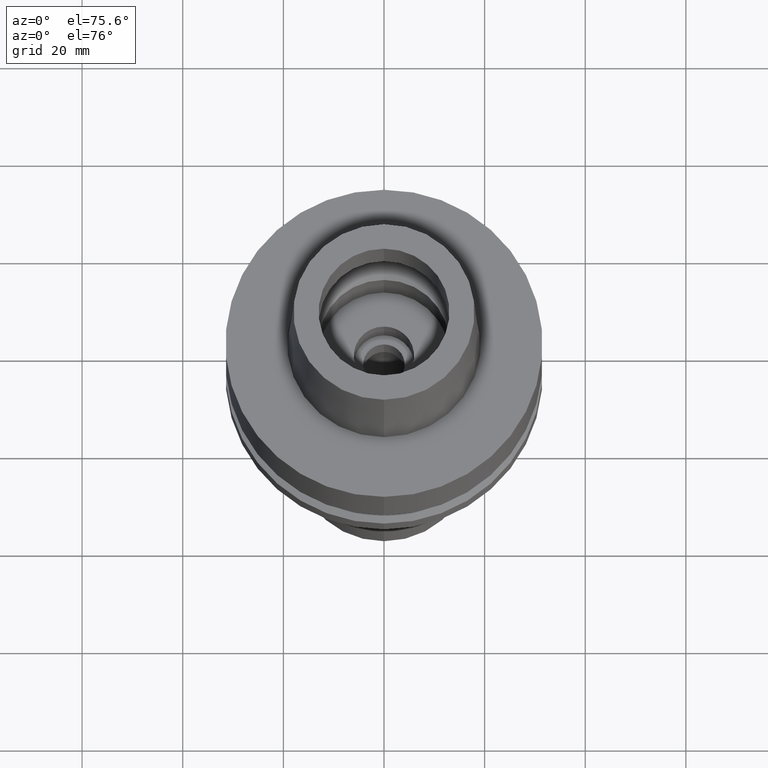
[diagram: clean part render]
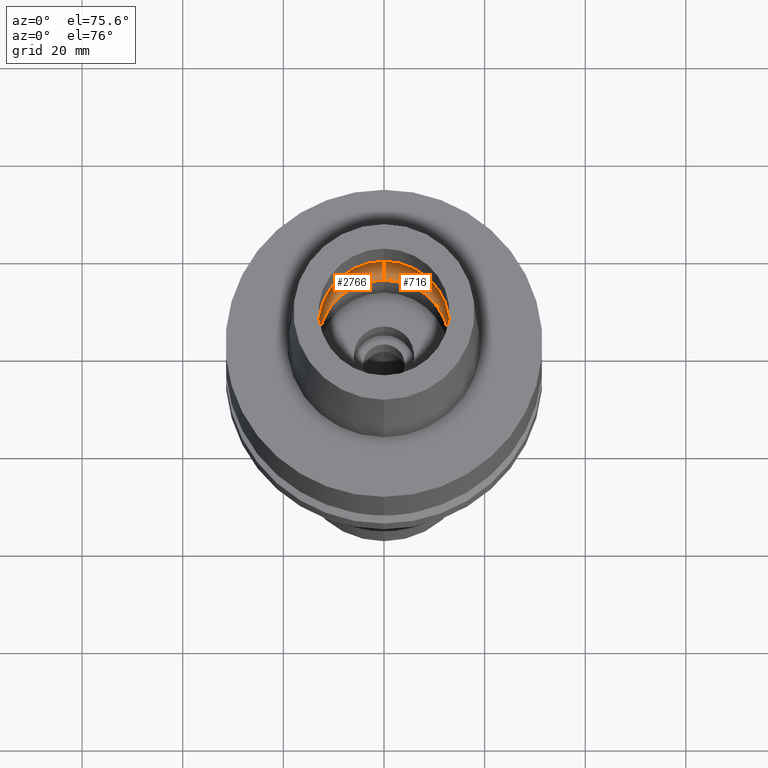
[diagram: same view with one multi-face feature highlighted, each face labeled with its STEP entity id]
A machine part, auxiliary view. The highlighted faces form ONE feature: a constant-radius fillet chain: 2 tangent blend faces with common blend radius 6 mm. The faces share edges in the B-rep.
Their STEP definitions:
[1] entity #716 (Torus):
#23 = CARTESIAN_POINT ( 'NONE',  ( 0.0000000000000000000, 0.0000000000000000000, 0.04984757729336999899 ) ) ;
#108 = ORIENTED_EDGE ( 'NONE', *, *, #1650, .F. ) ;
#173 = FACE_OUTER_BOUND ( 'NONE', #181, .T. ) ;
#181 = EDGE_LOOP ( 'NONE', ( #594, #468, #108, #2817 ) ) ;
#386 = VERTEX_POINT ( 'NONE', #1806 ) ;
#426 = AXIS2_PLACEMENT_3D ( 'NONE', #2552, #605, #2775 ) ;
#449 = DIRECTION ( 'NONE',  ( 0.0000000000000000000, 0.0000000000000000000, 1.000000000000000000 ) ) ;
#468 = ORIENTED_EDGE ( 'NONE', *, *, #2570, .T. ) ;
#479 = CIRCLE ( 'NONE', #2697, 13.00000000000000000 ) ;
#594 = ORIENTED_EDGE ( 'NONE', *, *, #2865, .F. ) ;
#605 = DIRECTION ( 'NONE',  ( 0.0000000000000000000, 0.0000000000000000000, -1.000000000000000000 ) ) ;
#641 = VERTEX_POINT ( 'NONE', #1928 ) ;
#716 = ADVANCED_FACE ( 'NONE', ( #173 ), #1967, .F. ) ;
#981 = CARTESIAN_POINT ( 'NONE',  ( 0.0000000000000000000, -16.00000000000000000, 5.245999999999999552 ) ) ;
#1023 = CIRCLE ( 'NONE', #426, 16.00000000000000000 ) ;
#1034 = CIRCLE ( 'NONE', #2043, 6.000000000000000000 ) ;
#1113 = DIRECTION ( 'NONE',  ( 0.0000000000000000000, 0.0000000000000000000, 1.000000000000000000 ) ) ;
#1218 = CIRCLE ( 'NONE', #2140, 6.000000000000000000 ) ;
#1220 = DIRECTION ( 'NONE',  ( 1.000000000000000000, 0.0000000000000000000, 0.0000000000000000000 ) ) ;
#1301 = DIRECTION ( 'NONE',  ( 0.0000000000000000000, 1.000000000000000000, 0.0000000000000000000 ) ) ;
#1407 = VERTEX_POINT ( 'NONE', #2312 ) ;
#1623 = CARTESIAN_POINT ( 'NONE',  ( 0.0000000000000000000, -10.00000000000000000, 5.245999999999999552 ) ) ;
#1642 = CARTESIAN_POINT ( 'NONE',  ( 0.0000000000000000000, 10.00000000000000000, 5.245999999999999552 ) ) ;
#1650 = EDGE_CURVE ( 'NONE', #386, #2022, #1023, .T. ) ;
#1742 = AXIS2_PLACEMENT_3D ( 'NONE', #2636, #1113, #1301 ) ;
#1806 = CARTESIAN_POINT ( 'NONE',  ( 0.0000000000000000000, 16.00000000000000000, 5.245999999999999552 ) ) ;
#1852 = DIRECTION ( 'NONE',  ( -1.000000000000000000, 0.0000000000000000000, 0.0000000000000000000 ) ) ;
#1928 = CARTESIAN_POINT ( 'NONE',  ( 0.0000000000000000000, -13.00000000000000000, 0.04984757729336999899 ) ) ;
#1967 = TOROIDAL_SURFACE ( 'NONE', #1742, 10.00000000000000000, 6.000000000000000000 ) ;
#2022 = VERTEX_POINT ( 'NONE', #981 ) ;
#2031 = DIRECTION ( 'NONE',  ( 0.0000000000000000000, -0.5000000000000169864, -0.8660254037844289376 ) ) ;
#2043 = AXIS2_PLACEMENT_3D ( 'NONE', #1623, #1852, #2031 ) ;
#2140 = AXIS2_PLACEMENT_3D ( 'NONE', #1642, #1220, #2294 ) ;
#2186 = DIRECTION ( 'NONE',  ( 0.0000000000000000000, -1.000000000000000000, 0.0000000000000000000 ) ) ;
#2294 = DIRECTION ( 'NONE',  ( 0.0000000000000000000, 0.5000000000000169864, -0.8660254037844289376 ) ) ;
#2312 = CARTESIAN_POINT ( 'NONE',  ( 0.0000000000000000000, 13.00000000000000000, 0.04984757729336999899 ) ) ;
#2552 = CARTESIAN_POINT ( 'NONE',  ( 0.0000000000000000000, 0.0000000000000000000, 5.245999999999999552 ) ) ;
#2553 = EDGE_CURVE ( 'NONE', #1407, #386, #1218, .T. ) ;
#2570 = EDGE_CURVE ( 'NONE', #641, #2022, #1034, .T. ) ;
#2636 = CARTESIAN_POINT ( 'NONE',  ( 0.0000000000000000000, 0.0000000000000000000, 5.245999999999999552 ) ) ;
#2697 = AXIS2_PLACEMENT_3D ( 'NONE', #23, #449, #2186 ) ;
#2775 = DIRECTION ( 'NONE',  ( 0.0000000000000000000, 1.000000000000000000, 0.0000000000000000000 ) ) ;
#2817 = ORIENTED_EDGE ( 'NONE', *, *, #2553, .F. ) ;
#2865 = EDGE_CURVE ( 'NONE', #641, #1407, #479, .T. ) ;
[2] entity #2766 (Torus):
#34 = EDGE_CURVE ( 'NONE', #1407, #641, #1918, .T. ) ;
#61 = EDGE_LOOP ( 'NONE', ( #2136, #1698, #2356, #2824 ) ) ;
#121 = DIRECTION ( 'NONE',  ( 0.0000000000000000000, 0.0000000000000000000, 1.000000000000000000 ) ) ;
#176 = DIRECTION ( 'NONE',  ( 0.0000000000000000000, 1.000000000000000000, 0.0000000000000000000 ) ) ;
#386 = VERTEX_POINT ( 'NONE', #1806 ) ;
#621 = CARTESIAN_POINT ( 'NONE',  ( 0.0000000000000000000, 0.0000000000000000000, 5.245999999999999552 ) ) ;
#641 = VERTEX_POINT ( 'NONE', #1928 ) ;
#981 = CARTESIAN_POINT ( 'NONE',  ( 0.0000000000000000000, -16.00000000000000000, 5.245999999999999552 ) ) ;
#1034 = CIRCLE ( 'NONE', #2043, 6.000000000000000000 ) ;
#1218 = CIRCLE ( 'NONE', #2140, 6.000000000000000000 ) ;
#1220 = DIRECTION ( 'NONE',  ( 1.000000000000000000, 0.0000000000000000000, 0.0000000000000000000 ) ) ;
#1407 = VERTEX_POINT ( 'NONE', #2312 ) ;
#1507 = TOROIDAL_SURFACE ( 'NONE', #1729, 10.00000000000000000, 6.000000000000000000 ) ;
#1623 = CARTESIAN_POINT ( 'NONE',  ( 0.0000000000000000000, -10.00000000000000000, 5.245999999999999552 ) ) ;
#1642 = CARTESIAN_POINT ( 'NONE',  ( 0.0000000000000000000, 10.00000000000000000, 5.245999999999999552 ) ) ;
#1698 = ORIENTED_EDGE ( 'NONE', *, *, #2570, .F. ) ;
#1729 = AXIS2_PLACEMENT_3D ( 'NONE', #621, #2100, #176 ) ;
#1780 = CIRCLE ( 'NONE', #2840, 16.00000000000000000 ) ;
#1806 = CARTESIAN_POINT ( 'NONE',  ( 0.0000000000000000000, 16.00000000000000000, 5.245999999999999552 ) ) ;
#1852 = DIRECTION ( 'NONE',  ( -1.000000000000000000, 0.0000000000000000000, 0.0000000000000000000 ) ) ;
#1918 = CIRCLE ( 'NONE', #2004, 13.00000000000000000 ) ;
#1928 = CARTESIAN_POINT ( 'NONE',  ( 0.0000000000000000000, -13.00000000000000000, 0.04984757729336999899 ) ) ;
#2004 = AXIS2_PLACEMENT_3D ( 'NONE', #2325, #121, #2395 ) ;
#2022 = VERTEX_POINT ( 'NONE', #981 ) ;
#2031 = DIRECTION ( 'NONE',  ( 0.0000000000000000000, -0.5000000000000169864, -0.8660254037844289376 ) ) ;
#2043 = AXIS2_PLACEMENT_3D ( 'NONE', #1623, #1852, #2031 ) ;
#2100 = DIRECTION ( 'NONE',  ( 0.0000000000000000000, 0.0000000000000000000, 1.000000000000000000 ) ) ;
#2136 = ORIENTED_EDGE ( 'NONE', *, *, #2254, .F. ) ;
#2140 = AXIS2_PLACEMENT_3D ( 'NONE', #1642, #1220, #2294 ) ;
#2254 = EDGE_CURVE ( 'NONE', #2022, #386, #1780, .T. ) ;
#2294 = DIRECTION ( 'NONE',  ( 0.0000000000000000000, 0.5000000000000169864, -0.8660254037844289376 ) ) ;
#2312 = CARTESIAN_POINT ( 'NONE',  ( 0.0000000000000000000, 13.00000000000000000, 0.04984757729336999899 ) ) ;
#2325 = CARTESIAN_POINT ( 'NONE',  ( 0.0000000000000000000, 0.0000000000000000000, 0.04984757729336999899 ) ) ;
#2348 = CARTESIAN_POINT ( 'NONE',  ( 0.0000000000000000000, 0.0000000000000000000, 5.245999999999999552 ) ) ;
#2356 = ORIENTED_EDGE ( 'NONE', *, *, #34, .F. ) ;
#2395 = DIRECTION ( 'NONE',  ( 0.0000000000000000000, 1.000000000000000000, 0.0000000000000000000 ) ) ;
#2553 = EDGE_CURVE ( 'NONE', #1407, #386, #1218, .T. ) ;
#2570 = EDGE_CURVE ( 'NONE', #641, #2022, #1034, .T. ) ;
#2766 = ADVANCED_FACE ( 'NONE', ( #2782 ), #1507, .F. ) ;
#2769 = DIRECTION ( 'NONE',  ( 0.0000000000000000000, -1.000000000000000000, 0.0000000000000000000 ) ) ;
#2782 = FACE_OUTER_BOUND ( 'NONE', #61, .T. ) ;
#2800 = DIRECTION ( 'NONE',  ( 0.0000000000000000000, 0.0000000000000000000, -1.000000000000000000 ) ) ;
#2824 = ORIENTED_EDGE ( 'NONE', *, *, #2553, .T. ) ;
#2840 = AXIS2_PLACEMENT_3D ( 'NONE', #2348, #2800, #2769 ) ;